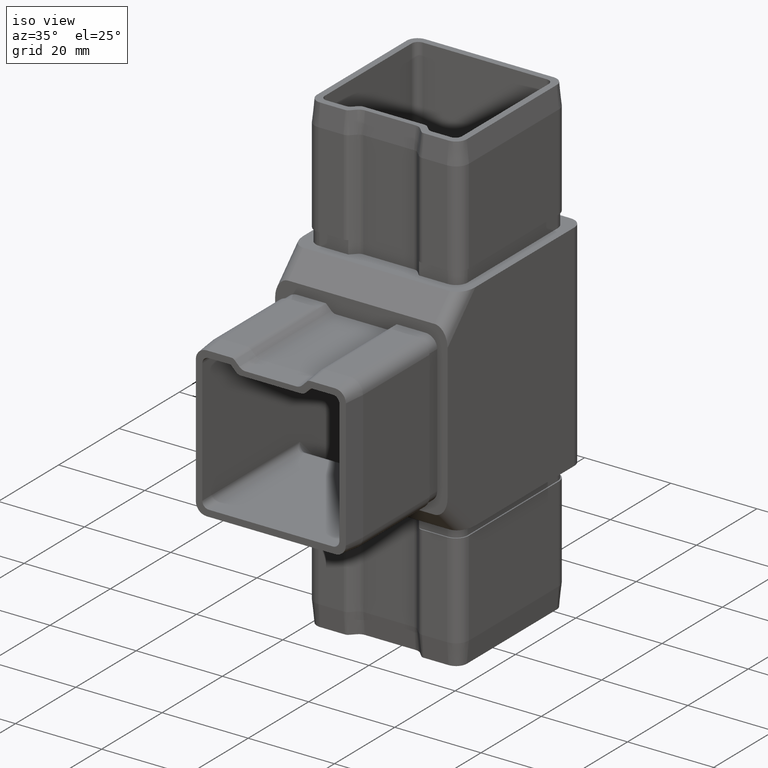
[diagram: clean part render]
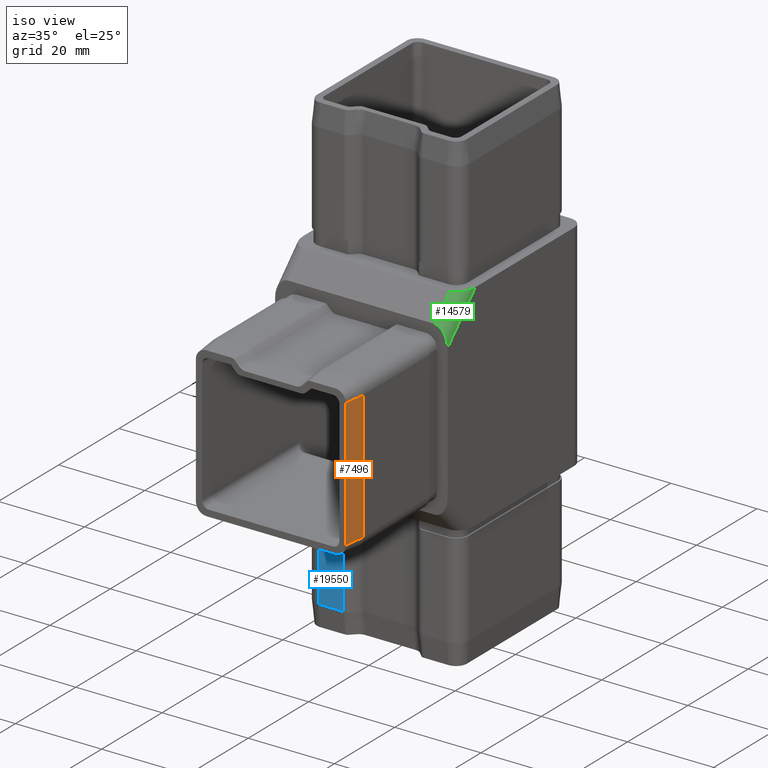
[diagram: same view with three faces highlighted in distinct colors, each labeled with its STEP entity id]
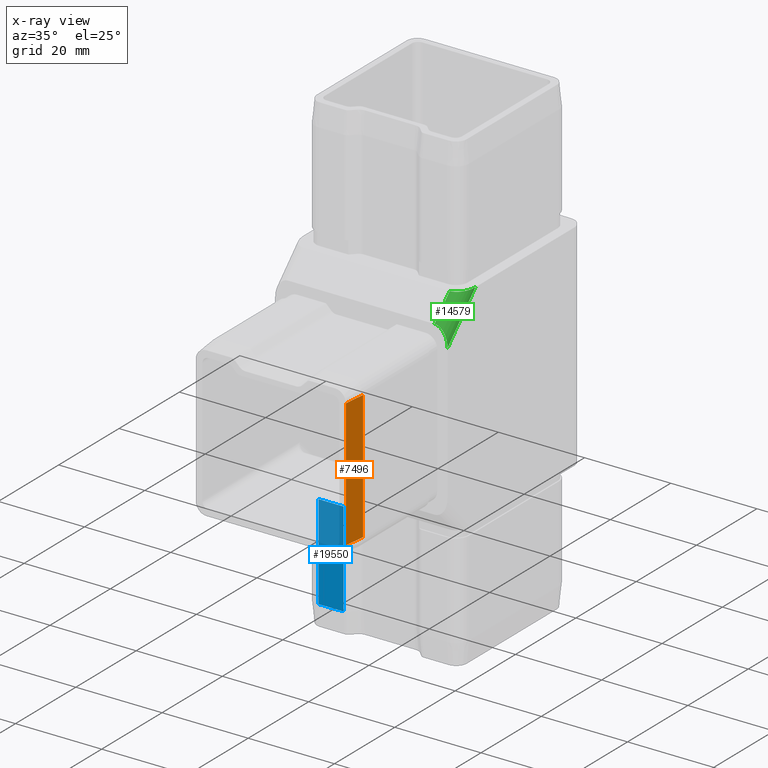
[diagram: x-ray of the same camera — body ghosted, the three highlighted faces saturated]
A machine part, iso view with three faces highlighted in distinct colors.
The next image is the same camera in x-ray (body ghosted, the three faces saturated) — at least one of them is partly hidden behind the body in this view.
Their STEP definitions:

[orange] entity #7496 — the highlighted planar face has unit normal (0.995, -0.0995, -0).
#1031 = EDGE_CURVE ( 'NONE', #15962, #10932, #10126, .T. ) ;
#2617 = VECTOR ( 'NONE', #15066, 1000.000000000000100 ) ;
#2732 = ORIENTED_EDGE ( 'NONE', *, *, #1031, .F. ) ;
#4002 = EDGE_LOOP ( 'NONE', ( #18356, #17670, #15921, #2732 ) ) ;
#4019 = CARTESIAN_POINT ( 'NONE',  ( 17.40000000000000600, -52.50000000000000700, 14.89999999999997400 ) ) ;
#4565 = DIRECTION ( 'NONE',  ( 0.0000000000000000000, -2.328487887217191400E-016, 1.000000000000000000 ) ) ;
#5359 = CARTESIAN_POINT ( 'NONE',  ( 17.40000000000000600, -52.50000000000000000, -14.90000000000002000 ) ) ;
#5815 = LINE ( 'NONE', #18817, #15286 ) ;
#6949 = EDGE_CURVE ( 'NONE', #20709, #18010, #5815, .T. ) ;
#7496 = ADVANCED_FACE ( 'NONE', ( #8056 ), #12509, .T. ) ;
#8056 = FACE_OUTER_BOUND ( 'NONE', #4002, .T. ) ;
#9349 = CARTESIAN_POINT ( 'NONE',  ( 17.40000000000000600, -52.50000000000000000, -14.90000000000002000 ) ) ;
#9549 = EDGE_CURVE ( 'NONE', #15962, #20709, #15096, .T. ) ;
#10126 = LINE ( 'NONE', #5359, #14075 ) ;
#10180 = DIRECTION ( 'NONE',  ( 0.0000000000000000000, -2.328487887217191400E-016, 1.000000000000000000 ) ) ;
#10932 = VERTEX_POINT ( 'NONE', #4019 ) ;
#11167 = CARTESIAN_POINT ( 'NONE',  ( 17.40000000000000600, -52.50000000000000000, -14.90000000000002000 ) ) ;
#11823 = DIRECTION ( 'NONE',  ( 0.09950371902099890100, 0.9950371902099890400, 4.357924340216641500E-016 ) ) ;
#12509 = PLANE ( 'NONE',  #19540 ) ;
#13072 = CARTESIAN_POINT ( 'NONE',  ( 17.90000000000000600, -47.50000000000000000, 14.89999999999997500 ) ) ;
#13589 = EDGE_CURVE ( 'NONE', #10932, #18010, #16183, .T. ) ;
#14075 = VECTOR ( 'NONE', #10180, 1000.000000000000000 ) ;
#15066 = DIRECTION ( 'NONE',  ( 0.09950371902099890100, 0.9950371902099890400, 4.357924340216641500E-016 ) ) ;
#15096 = LINE ( 'NONE', #19975, #2617 ) ;
#15286 = VECTOR ( 'NONE', #4565, 1000.000000000000000 ) ;
#15435 = CARTESIAN_POINT ( 'NONE',  ( 17.90000000000000600, -47.49999999999999300, -14.90000000000001800 ) ) ;
#15921 = ORIENTED_EDGE ( 'NONE', *, *, #13589, .F. ) ;
#15962 = VERTEX_POINT ( 'NONE', #11167 ) ;
#16183 = LINE ( 'NONE', #19995, #19475 ) ;
#17357 = DIRECTION ( 'NONE',  ( 0.9950371902099891500, -0.09950371902099891500, -2.316932044734588500E-017 ) ) ;
#17670 = ORIENTED_EDGE ( 'NONE', *, *, #6949, .T. ) ;
#18010 = VERTEX_POINT ( 'NONE', #13072 ) ;
#18356 = ORIENTED_EDGE ( 'NONE', *, *, #9549, .T. ) ;
#18817 = CARTESIAN_POINT ( 'NONE',  ( 17.90000000000000600, -47.49999999999999300, -14.90000000000001800 ) ) ;
#19475 = VECTOR ( 'NONE', #11823, 1000.000000000000100 ) ;
#19540 = AXIS2_PLACEMENT_3D ( 'NONE', #9349, #17357, #20673 ) ;
#19975 = CARTESIAN_POINT ( 'NONE',  ( 17.40000000000000600, -52.50000000000000000, -14.90000000000002000 ) ) ;
#19995 = CARTESIAN_POINT ( 'NONE',  ( 17.40000000000000600, -52.50000000000000700, 14.89999999999997400 ) ) ;
#20673 = DIRECTION ( 'NONE',  ( 0.09950371902099890100, 0.9950371902099890400, 0.0000000000000000000 ) ) ;
#20709 = VERTEX_POINT ( 'NONE', #15435 ) ;

[blue] entity #19550 — the highlighted planar face has unit normal (-0, 1, 0).
#44 = VERTEX_POINT ( 'NONE', #12376 ) ;
#819 = EDGE_CURVE ( 'NONE', #44, #8507, #4366, .T. ) ;
#914 = CARTESIAN_POINT ( 'NONE',  ( 2.841993779791788000E-015, -15.39999999999999500, -55.00000000000000000 ) ) ;
#971 = DIRECTION ( 'NONE',  ( -1.000000000000000000, 0.0000000000000000000, 0.0000000000000000000 ) ) ;
#2004 = ORIENTED_EDGE ( 'NONE', *, *, #17079, .T. ) ;
#2736 = CARTESIAN_POINT ( 'NONE',  ( -9.121320343559645500, -15.39999999999999700, -50.00000000000000000 ) ) ;
#4012 = LINE ( 'NONE', #17316, #8245 ) ;
#4124 = DIRECTION ( 'NONE',  ( -1.000000000000000000, -1.164243943608595200E-016, 0.0000000000000000000 ) ) ;
#4366 = LINE ( 'NONE', #13869, #17599 ) ;
#4782 = CARTESIAN_POINT ( 'NONE',  ( -9.121320343559645500, -15.39999999999999700, -50.00000000000000000 ) ) ;
#5804 = EDGE_LOOP ( 'NONE', ( #18077, #11121, #16485, #2004 ) ) ;
#6417 = AXIS2_PLACEMENT_3D ( 'NONE', #914, #16813, #12031 ) ;
#6523 = EDGE_CURVE ( 'NONE', #11073, #13822, #13332, .T. ) ;
#8245 = VECTOR ( 'NONE', #18960, 1000.000000000000000 ) ;
#8507 = VERTEX_POINT ( 'NONE', #12577 ) ;
#9669 = CARTESIAN_POINT ( 'NONE',  ( -14.90000000000000600, -15.39999999999999700, -50.00000000000000000 ) ) ;
#10499 = PLANE ( 'NONE',  #6417 ) ;
#11073 = VERTEX_POINT ( 'NONE', #4782 ) ;
#11121 = ORIENTED_EDGE ( 'NONE', *, *, #13342, .T. ) ;
#12031 = DIRECTION ( 'NONE',  ( -1.000000000000000000, -1.845450506358304800E-016, 0.0000000000000000000 ) ) ;
#12376 = CARTESIAN_POINT ( 'NONE',  ( -9.121320343559643700, -15.39999999999999700, -28.00000000000000000 ) ) ;
#12577 = CARTESIAN_POINT ( 'NONE',  ( -14.90000000000000600, -15.39999999999999000, -28.00000000000000000 ) ) ;
#13332 = LINE ( 'NONE', #2736, #13563 ) ;
#13342 = EDGE_CURVE ( 'NONE', #11073, #44, #4012, .T. ) ;
#13563 = VECTOR ( 'NONE', #971, 1000.000000000000000 ) ;
#13822 = VERTEX_POINT ( 'NONE', #9669 ) ;
#13869 = CARTESIAN_POINT ( 'NONE',  ( 14.90000000000000200, -15.39999999999998600, -28.00000000000000000 ) ) ;
#15249 = LINE ( 'NONE', #19131, #18260 ) ;
#16485 = ORIENTED_EDGE ( 'NONE', *, *, #819, .T. ) ;
#16813 = DIRECTION ( 'NONE',  ( -1.845450506358304800E-016, 1.000000000000000000, 0.0000000000000000000 ) ) ;
#17079 = EDGE_CURVE ( 'NONE', #8507, #13822, #15249, .T. ) ;
#17316 = CARTESIAN_POINT ( 'NONE',  ( -9.121320343559643700, -15.39999999999999700, -55.00000000000000000 ) ) ;
#17599 = VECTOR ( 'NONE', #4124, 1000.000000000000000 ) ;
#18077 = ORIENTED_EDGE ( 'NONE', *, *, #6523, .F. ) ;
#18260 = VECTOR ( 'NONE', #19600, 1000.000000000000000 ) ;
#18960 = DIRECTION ( 'NONE',  ( 0.0000000000000000000, 0.0000000000000000000, 1.000000000000000000 ) ) ;
#19131 = CARTESIAN_POINT ( 'NONE',  ( -14.90000000000000600, -15.39999999999999900, -55.00000000000000000 ) ) ;
#19550 = ADVANCED_FACE ( 'NONE', ( #19951 ), #10499, .F. ) ;
#19600 = DIRECTION ( 'NONE',  ( -0.0000000000000000000, -0.0000000000000000000, -1.000000000000000000 ) ) ;
#19951 = FACE_OUTER_BOUND ( 'NONE', #5804, .T. ) ;

[green] entity #14579 — the highlighted cylindrical surface (edge-blend (fillet) strip) has radius 3 mm, axis along (-0, 0.7071, 0.7071).
#285 = VECTOR ( 'NONE', #16914, 1000.000000000000100 ) ;
#1293 = CARTESIAN_POINT ( 'NONE',  ( 17.00000000000000400, -17.50000000000000000, 25.00000000000000000 ) ) ;
#1426 = DIRECTION ( 'NONE',  ( 0.0000000000000000000, -0.7071067811865495700, 0.7071067811865454600 ) ) ;
#1980 = VERTEX_POINT ( 'NONE', #9519 ) ;
#4327 = CARTESIAN_POINT ( 'NONE',  ( 20.00000000000000400, -22.50000000000000000, 15.75735931288068600 ) ) ;
#4347 =( BOUNDED_CURVE ( )  B_SPLINE_CURVE ( 3, ( #4327, #9056, #17065, #14002 ),
 .UNSPECIFIED., .F., .F. ) 
 B_SPLINE_CURVE_WITH_KNOTS ( ( 4, 4 ),
 ( 4.712388980384689700, 6.283185307179584500 ),
 .UNSPECIFIED. ) 
 CURVE ( )  GEOMETRIC_REPRESENTATION_ITEM ( )  RATIONAL_B_SPLINE_CURVE ( ( 1.000000000000000000, 0.8047378541243654900, 0.8047378541243654900, 1.000000000000000000 ) ) 
 REPRESENTATION_ITEM ( '' )  );
#4501 = ORIENTED_EDGE ( 'NONE', *, *, #10415, .F. ) ;
#5688 = CARTESIAN_POINT ( 'NONE',  ( 17.00000000000000400, -17.50000000000000000, 25.00000000000000000 ) ) ;
#5854 = CARTESIAN_POINT ( 'NONE',  ( 17.00000000000000400, -17.49999999999999600, 25.00000000000000400 ) ) ;
#5918 = DIRECTION ( 'NONE',  ( -1.090341985197063800E-016, 0.7071067811865460200, 0.7071067811865490200 ) ) ;
#6054 = CARTESIAN_POINT ( 'NONE',  ( 17.00000000000000000, 4.621320343559561100, 42.87867965644036200 ) ) ;
#7177 = EDGE_LOOP ( 'NONE', ( #14292, #4501, #20453, #14185 ) ) ;
#7696 = AXIS2_PLACEMENT_3D ( 'NONE', #6054, #5918, #1426 ) ;
#7968 = CARTESIAN_POINT ( 'NONE',  ( 20.00000000000000400, -22.50000000000000000, 15.75735931288068600 ) ) ;
#8791 = LINE ( 'NONE', #5854, #285 ) ;
#9056 = CARTESIAN_POINT ( 'NONE',  ( 20.00000000000000400, -22.50000000000000400, 18.24264068711925900 ) ) ;
#9519 = CARTESIAN_POINT ( 'NONE',  ( 20.00000000000000400, -13.25735931288071100, 25.00000000000000000 ) ) ;
#9643 = EDGE_CURVE ( 'NONE', #11297, #19974, #4347, .T. ) ;
#9784 = FACE_OUTER_BOUND ( 'NONE', #7177, .T. ) ;
#10415 = EDGE_CURVE ( 'NONE', #19974, #20661, #8791, .T. ) ;
#11297 = VERTEX_POINT ( 'NONE', #7968 ) ;
#11999 = CYLINDRICAL_SURFACE ( 'NONE', #7696, 2.999999999999997800 ) ;
#12410 = CARTESIAN_POINT ( 'NONE',  ( 20.00000000000000400, -13.25735931288071100, 25.00000000000000000 ) ) ;
#12480 = CARTESIAN_POINT ( 'NONE',  ( 20.00000000000001400, -15.74264068711928000, 25.00000000000000700 ) ) ;
#13070 = DIRECTION ( 'NONE',  ( 1.090341985197063700E-016, -0.7071067811865460200, -0.7071067811865489100 ) ) ;
#14002 = CARTESIAN_POINT ( 'NONE',  ( 17.00000000000000700, -22.50000000000000000, 19.99999999999998200 ) ) ;
#14185 = ORIENTED_EDGE ( 'NONE', *, *, #15617, .F. ) ;
#14292 = ORIENTED_EDGE ( 'NONE', *, *, #19100, .F. ) ;
#14579 = ADVANCED_FACE ( 'NONE', ( #9784 ), #11999, .T. ) ;
#14592 = CARTESIAN_POINT ( 'NONE',  ( 20.00000000000000400, -20.37867965644035100, 17.87867965644034400 ) ) ;
#15522 = CARTESIAN_POINT ( 'NONE',  ( 18.75735931288072700, -17.50000000000000000, 25.00000000000000700 ) ) ;
#15617 = EDGE_CURVE ( 'NONE', #1980, #11297, #18453, .T. ) ;
#15954 =( BOUNDED_CURVE ( )  B_SPLINE_CURVE ( 3, ( #1293, #15522, #12480, #12410 ),
 .UNSPECIFIED., .F., .F. ) 
 B_SPLINE_CURVE_WITH_KNOTS ( ( 4, 4 ),
 ( 3.141592653589793100, 4.712388980384693200 ),
 .UNSPECIFIED. ) 
 CURVE ( )  GEOMETRIC_REPRESENTATION_ITEM ( )  RATIONAL_B_SPLINE_CURVE ( ( 1.000000000000000000, 0.8047378541243641600, 0.8047378541243641600, 1.000000000000000000 ) ) 
 REPRESENTATION_ITEM ( '' )  );
#16914 = DIRECTION ( 'NONE',  ( -1.090341985197063700E-016, 0.7071067811865460200, 0.7071067811865489100 ) ) ;
#17065 = CARTESIAN_POINT ( 'NONE',  ( 18.75735931288072000, -22.50000000000000400, 19.99999999999997200 ) ) ;
#18082 = CARTESIAN_POINT ( 'NONE',  ( 17.00000000000000700, -22.50000000000000000, 19.99999999999998200 ) ) ;
#18453 = LINE ( 'NONE', #14592, #20752 ) ;
#19100 = EDGE_CURVE ( 'NONE', #20661, #1980, #15954, .T. ) ;
#19974 = VERTEX_POINT ( 'NONE', #18082 ) ;
#20453 = ORIENTED_EDGE ( 'NONE', *, *, #9643, .F. ) ;
#20661 = VERTEX_POINT ( 'NONE', #5688 ) ;
#20752 = VECTOR ( 'NONE', #13070, 1000.000000000000100 ) ;